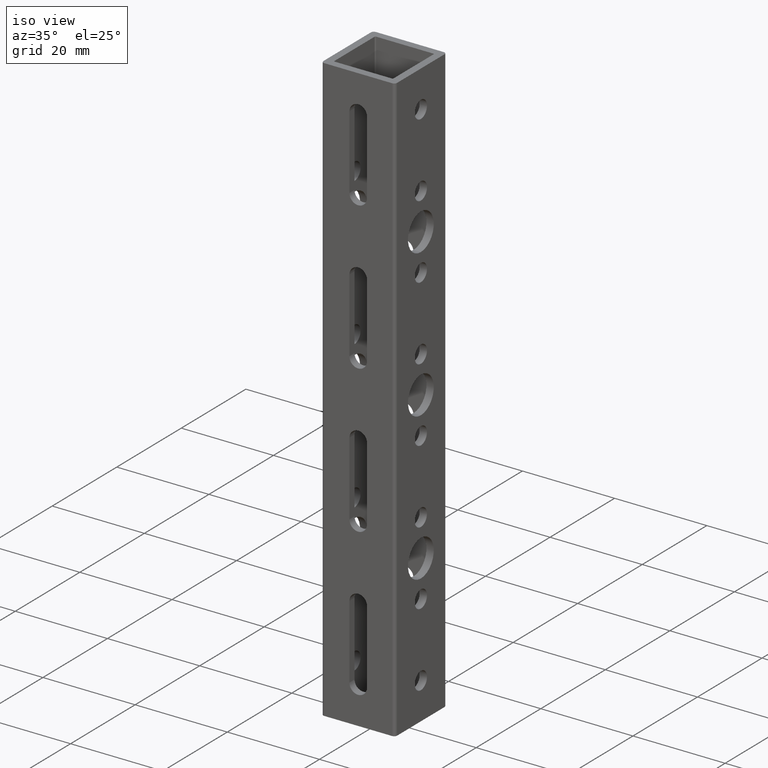
[diagram: clean part render]
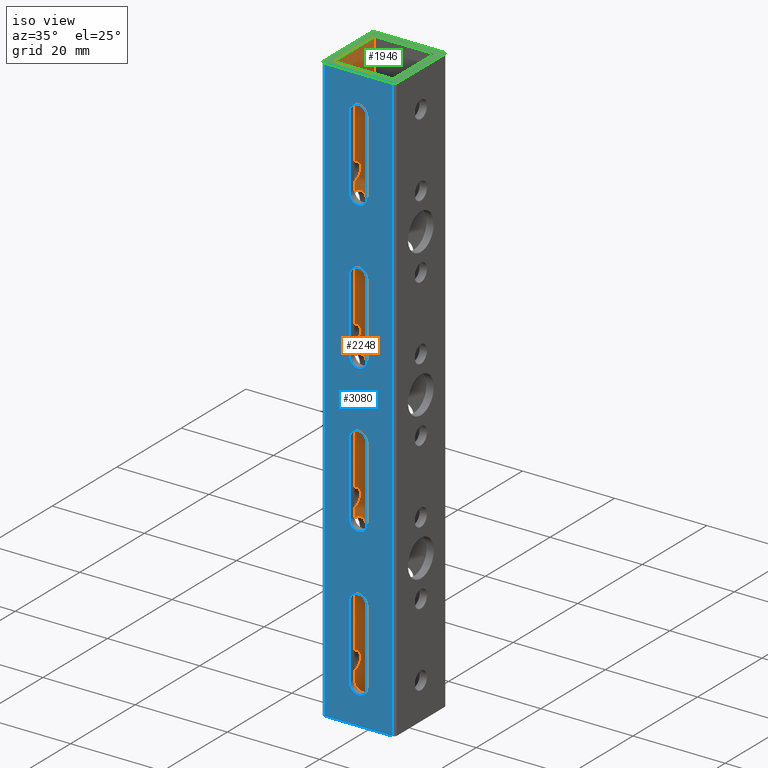
[diagram: same view with three faces highlighted in distinct colors, each labeled with its STEP entity id]
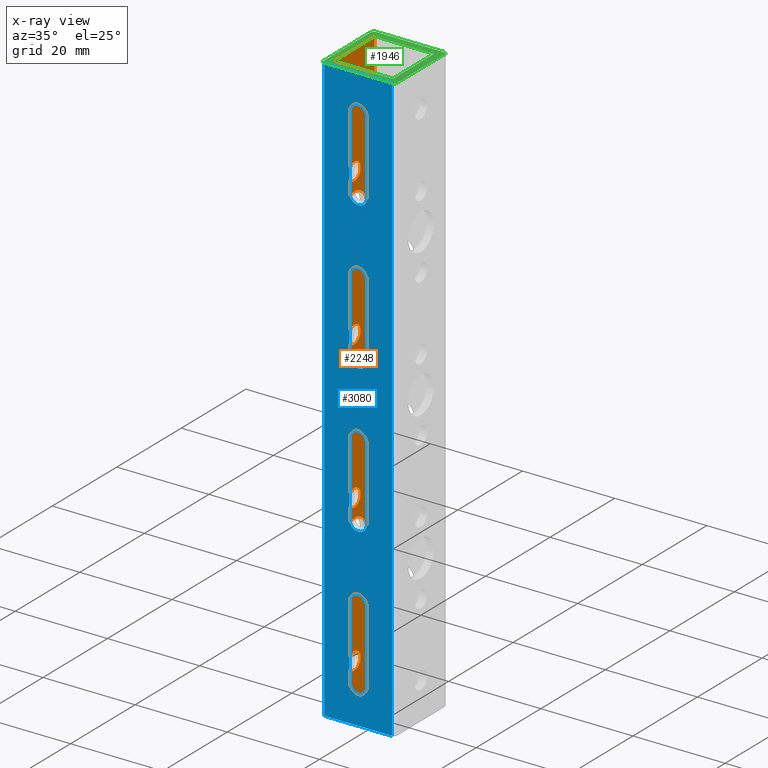
[diagram: x-ray of the same camera — body ghosted, the three highlighted faces saturated]
A machine part, iso view with three faces highlighted in distinct colors.
The next image is the same camera in x-ray (body ghosted, the three faces saturated) — at least one of them is partly hidden behind the body in this view.
Their STEP definitions:

[orange] entity #2248 — the highlighted planar face has unit normal (1, 0, 0).
#18 = ORIENTED_EDGE ( 'NONE', *, *, #3134, .F. ) ;
#21 = DIRECTION ( 'NONE',  ( 0.0000000000000000000, -1.000000000000000000, 0.0000000000000000000 ) ) ;
#47 = CARTESIAN_POINT ( 'NONE',  ( -0.2524606299212598900, -3.857155273869339500E-016, 3.464566930000001000 ) ) ;
#68 = CIRCLE ( 'NONE', #2793, 0.1574803149606295300 ) ;
#91 = CIRCLE ( 'NONE', #2719, 0.07500000000000015000 ) ;
#96 = DIRECTION ( 'NONE',  ( 1.000000000000000000, 0.0000000000000000000, 0.0000000000000000000 ) ) ;
#97 = FACE_OUTER_BOUND ( 'NONE', #2862, .T. ) ;
#101 = EDGE_CURVE ( 'NONE', #3566, #1895, #68, .T. ) ;
#113 = AXIS2_PLACEMENT_3D ( 'NONE', #430, #1008, #3530 ) ;
#133 = CARTESIAN_POINT ( 'NONE',  ( -0.2524606299212598900, 0.2424606299212598800, 5.039370078740157400 ) ) ;
#134 = EDGE_CURVE ( 'NONE', #1053, #1635, #2132, .T. ) ;
#171 = EDGE_LOOP ( 'NONE', ( #3077, #749 ) ) ;
#183 = FACE_BOUND ( 'NONE', #3520, .T. ) ;
#188 = AXIS2_PLACEMENT_3D ( 'NONE', #2228, #562, #2519 ) ;
#205 = ORIENTED_EDGE ( 'NONE', *, *, #3604, .T. ) ;
#229 = AXIS2_PLACEMENT_3D ( 'NONE', #1547, #705, #2950 ) ;
#238 = VERTEX_POINT ( 'NONE', #2469 ) ;
#255 = CARTESIAN_POINT ( 'NONE',  ( -0.2524606299212598900, -5.400017383417074700E-016, 4.724409450000000500 ) ) ;
#262 = AXIS2_PLACEMENT_3D ( 'NONE', #467, #2135, #3485 ) ;
#280 = FACE_BOUND ( 'NONE', #171, .T. ) ;
#293 = ORIENTED_EDGE ( 'NONE', *, *, #1167, .F. ) ;
#310 = CARTESIAN_POINT ( 'NONE',  ( -0.2524606299212598900, 0.2424606299212598800, 5.039370078740157400 ) ) ;
#337 = EDGE_LOOP ( 'NONE', ( #1577, #1613 ) ) ;
#346 = DIRECTION ( 'NONE',  ( 0.0000000000000000000, 0.0000000000000000000, -1.000000000000000000 ) ) ;
#361 = DIRECTION ( 'NONE',  ( 0.0000000000000000000, 0.0000000000000000000, -1.000000000000000000 ) ) ;
#397 = CARTESIAN_POINT ( 'NONE',  ( -0.2524606299212598900, -3.086109933851330200E-016, 3.779842519999999900 ) ) ;
#404 = EDGE_LOOP ( 'NONE', ( #1610, #840 ) ) ;
#418 = CIRCLE ( 'NONE', #1398, 0.1574803149606299200 ) ;
#421 = DIRECTION ( 'NONE',  ( 1.000000000000000000, 0.0000000000000000000, 0.0000000000000000000 ) ) ;
#430 = CARTESIAN_POINT ( 'NONE',  ( -0.2524606299212598900, -2.314293164321603300E-016, 2.204724410000000300 ) ) ;
#433 = AXIS2_PLACEMENT_3D ( 'NONE', #684, #1270, #2991 ) ;
#455 = CARTESIAN_POINT ( 'NONE',  ( -0.2524606299212598900, -3.086109933851330200E-016, 3.779842519999999900 ) ) ;
#464 = CIRCLE ( 'NONE', #2034, 0.07500000007529962500 ) ;
#467 = CARTESIAN_POINT ( 'NONE',  ( -0.2524606299212598900, 0.0000000000000000000, 1.259842520000000300 ) ) ;
#474 = DIRECTION ( 'NONE',  ( 1.000000000000000000, 0.0000000000000000000, 0.0000000000000000000 ) ) ;
#475 = VERTEX_POINT ( 'NONE', #3654 ) ;
#518 = CARTESIAN_POINT ( 'NONE',  ( -0.2524606299212598900, 0.0000000000000000000, 1.259842520000000300 ) ) ;
#530 = VERTEX_POINT ( 'NONE', #3398 ) ;
#553 = DIRECTION ( 'NONE',  ( 0.0000000000000000000, 0.0000000000000000000, -1.000000000000000000 ) ) ;
#562 = DIRECTION ( 'NONE',  ( 1.000000000000000000, 0.0000000000000000000, 0.0000000000000000000 ) ) ;
#566 = CARTESIAN_POINT ( 'NONE',  ( -0.2524606299212598900, -0.2424606299212598600, 5.039370078740157400 ) ) ;
#589 = CARTESIAN_POINT ( 'NONE',  ( -0.2524606299212598900, -0.2524606299212598400, 5.039370078740157400 ) ) ;
#634 = CARTESIAN_POINT ( 'NONE',  ( -0.2524606299212598900, -1.543054966925665100E-016, 2.519842520000000100 ) ) ;
#644 = EDGE_CURVE ( 'NONE', #737, #3209, #3407, .T. ) ;
#666 = CARTESIAN_POINT ( 'NONE',  ( -0.2524606299212598900, -0.2524606299212598400, 0.0000000000000000000 ) ) ;
#676 = VECTOR ( 'NONE', #2627, 39.37007874015748100 ) ;
#684 = CARTESIAN_POINT ( 'NONE',  ( -0.2524606299212598900, -1.543054966925665100E-016, 2.519842520000000100 ) ) ;
#705 = DIRECTION ( 'NONE',  ( 1.000000000000000000, 0.0000000000000000000, 0.0000000000000000000 ) ) ;
#720 = AXIS2_PLACEMENT_3D ( 'NONE', #1523, #3491, #1811 ) ;
#722 = DIRECTION ( 'NONE',  ( 1.000000000000000000, 0.0000000000000000000, 0.0000000000000000000 ) ) ;
#723 = CIRCLE ( 'NONE', #433, 0.1574803149606297800 ) ;
#737 = VERTEX_POINT ( 'NONE', #1858 ) ;
#749 = ORIENTED_EDGE ( 'NONE', *, *, #2256, .F. ) ;
#754 = LINE ( 'NONE', #666, #676 ) ;
#763 = LINE ( 'NONE', #310, #2082 ) ;
#777 = DIRECTION ( 'NONE',  ( 0.0000000000000000000, 0.0000000000000000000, -1.000000000000000000 ) ) ;
#789 = DIRECTION ( 'NONE',  ( 0.0000000000000000000, 0.0000000000000000000, -1.000000000000000000 ) ) ;
#806 = CARTESIAN_POINT ( 'NONE',  ( -0.2524606299212598900, -1.542862109547735700E-016, 1.499803150000000400 ) ) ;
#809 = CIRCLE ( 'NONE', #2756, 0.1574803149606297800 ) ;
#840 = ORIENTED_EDGE ( 'NONE', *, *, #2213, .F. ) ;
#843 = EDGE_LOOP ( 'NONE', ( #1493, #2229 ) ) ;
#854 = FACE_BOUND ( 'NONE', #3181, .T. ) ;
#865 = CIRCLE ( 'NONE', #3440, 0.07499999999999988600 ) ;
#914 = CIRCLE ( 'NONE', #3157, 0.07500000000000015000 ) ;
#929 = CARTESIAN_POINT ( 'NONE',  ( -0.2524606299212598900, -3.857155273869339500E-016, 3.464566930000001000 ) ) ;
#944 = FACE_BOUND ( 'NONE', #2541, .T. ) ;
#957 = VERTEX_POINT ( 'NONE', #2358 ) ;
#982 = DIRECTION ( 'NONE',  ( 0.0000000000000000000, 0.0000000000000000000, -1.000000000000000000 ) ) ;
#997 = DIRECTION ( 'NONE',  ( 0.0000000000000000000, 0.0000000000000000000, -1.000000000000000000 ) ) ;
#1008 = DIRECTION ( 'NONE',  ( 1.000000000000000000, 0.0000000000000000000, 0.0000000000000000000 ) ) ;
#1037 = FACE_BOUND ( 'NONE', #337, .T. ) ;
#1053 = VERTEX_POINT ( 'NONE', #2616 ) ;
#1067 = ORIENTED_EDGE ( 'NONE', *, *, #3215, .F. ) ;
#1095 = EDGE_CURVE ( 'NONE', #1409, #475, #2163, .T. ) ;
#1114 = EDGE_LOOP ( 'NONE', ( #3433, #293 ) ) ;
#1148 = ORIENTED_EDGE ( 'NONE', *, *, #1529, .F. ) ;
#1167 = EDGE_CURVE ( 'NONE', #475, #1409, #3402, .T. ) ;
#1186 = CARTESIAN_POINT ( 'NONE',  ( -0.2524606299212598900, -7.714310547738678500E-017, 0.9448818900000001100 ) ) ;
#1203 = DIRECTION ( 'NONE',  ( 0.0000000000000000000, 0.0000000000000000000, -1.000000000000000000 ) ) ;
#1224 = ORIENTED_EDGE ( 'NONE', *, *, #3106, .F. ) ;
#1228 = VERTEX_POINT ( 'NONE', #3515 ) ;
#1243 = CARTESIAN_POINT ( 'NONE',  ( -0.2524606299212598900, -0.2424606299212598600, 0.0000000000000000000 ) ) ;
#1244 = LINE ( 'NONE', #1243, #2735 ) ;
#1245 = EDGE_CURVE ( 'NONE', #2094, #1228, #809, .T. ) ;
#1253 = CARTESIAN_POINT ( 'NONE',  ( -0.2524606299212598900, -2.993875709159420200E-016, 2.909645670000000200 ) ) ;
#1269 = EDGE_CURVE ( 'NONE', #530, #3518, #1648, .T. ) ;
#1270 = DIRECTION ( 'NONE',  ( 1.000000000000000000, 0.0000000000000000000, 0.0000000000000000000 ) ) ;
#1272 = CARTESIAN_POINT ( 'NONE',  ( -0.2524606299212598900, 0.0000000000000000000, 0.3149606300000000700 ) ) ;
#1273 = EDGE_CURVE ( 'NONE', #1895, #3566, #3059, .T. ) ;
#1285 = AXIS2_PLACEMENT_3D ( 'NONE', #2143, #474, #2430 ) ;
#1315 = DIRECTION ( 'NONE',  ( 1.000000000000000000, 0.0000000000000000000, 0.0000000000000000000 ) ) ;
#1318 = VERTEX_POINT ( 'NONE', #1814 ) ;
#1327 = VECTOR ( 'NONE', #21, 39.37007874015748100 ) ;
#1348 = EDGE_CURVE ( 'NONE', #2142, #2012, #2870, .T. ) ;
#1355 = EDGE_CURVE ( 'NONE', #1228, #2094, #723, .T. ) ;
#1398 = AXIS2_PLACEMENT_3D ( 'NONE', #518, #2474, #789 ) ;
#1409 = VERTEX_POINT ( 'NONE', #2492 ) ;
#1411 = DIRECTION ( 'NONE',  ( 1.000000000000000000, 0.0000000000000000000, 0.0000000000000000000 ) ) ;
#1417 = VERTEX_POINT ( 'NONE', #2804 ) ;
#1460 = VERTEX_POINT ( 'NONE', #1950 ) ;
#1493 = ORIENTED_EDGE ( 'NONE', *, *, #1355, .F. ) ;
#1508 = CIRCLE ( 'NONE', #3282, 0.07500000000000002500 ) ;
#1509 = CIRCLE ( 'NONE', #1285, 0.07499999999999960900 ) ;
#1523 = CARTESIAN_POINT ( 'NONE',  ( -0.2524606299212598900, -5.400017383417074700E-016, 4.724409450000000500 ) ) ;
#1529 = EDGE_CURVE ( 'NONE', #1635, #1053, #865, .T. ) ;
#1530 = CARTESIAN_POINT ( 'NONE',  ( -0.2524606299212598900, -3.085724219095471400E-016, 2.834645670000000500 ) ) ;
#1547 = CARTESIAN_POINT ( 'NONE',  ( -0.2524606299212598900, -4.628586328643206600E-016, 4.094488190000000700 ) ) ;
#1576 = VERTEX_POINT ( 'NONE', #1622 ) ;
#1577 = ORIENTED_EDGE ( 'NONE', *, *, #1907, .F. ) ;
#1581 = ORIENTED_EDGE ( 'NONE', *, *, #3178, .T. ) ;
#1597 = FACE_BOUND ( 'NONE', #843, .T. ) ;
#1610 = ORIENTED_EDGE ( 'NONE', *, *, #2806, .F. ) ;
#1613 = ORIENTED_EDGE ( 'NONE', *, *, #1918, .F. ) ;
#1622 = CARTESIAN_POINT ( 'NONE',  ( -0.2524606299212598900, -3.857155273869339500E-016, 3.389566930000000900 ) ) ;
#1629 = AXIS2_PLACEMENT_3D ( 'NONE', #2976, #2744, #777 ) ;
#1635 = VERTEX_POINT ( 'NONE', #806 ) ;
#1646 = CIRCLE ( 'NONE', #2898, 0.07499999999999960900 ) ;
#1648 = CIRCLE ( 'NONE', #2181, 0.07500000000000002500 ) ;
#1660 = AXIS2_PLACEMENT_3D ( 'NONE', #2399, #722, #2115 ) ;
#1683 = CARTESIAN_POINT ( 'NONE',  ( -0.2524606299212598900, -6.795825448378161900E-017, 1.019881890000000200 ) ) ;
#1689 = DIRECTION ( 'NONE',  ( 1.000000000000000000, 0.0000000000000000000, 0.0000000000000000000 ) ) ;
#1691 = FACE_BOUND ( 'NONE', #2799, .T. ) ;
#1722 = DIRECTION ( 'NONE',  ( 1.000000000000000000, 0.0000000000000000000, 0.0000000000000000000 ) ) ;
#1811 = DIRECTION ( 'NONE',  ( 0.0000000000000000000, 0.0000000000000000000, -1.000000000000000000 ) ) ;
#1814 = CARTESIAN_POINT ( 'NONE',  ( -0.2524606299212598900, 0.2424606299212598800, 0.0000000000000000000 ) ) ;
#1858 = CARTESIAN_POINT ( 'NONE',  ( -0.2524606299212598900, -3.085724219095471400E-016, 2.759645670000001200 ) ) ;
#1877 = ORIENTED_EDGE ( 'NONE', *, *, #134, .F. ) ;
#1884 = CARTESIAN_POINT ( 'NONE',  ( -0.2524606299212598900, -1.350197203280413000E-016, 2.677322834960629700 ) ) ;
#1895 = VERTEX_POINT ( 'NONE', #2980 ) ;
#1907 = EDGE_CURVE ( 'NONE', #1417, #3088, #2700, .T. ) ;
#1918 = EDGE_CURVE ( 'NONE', #3088, #1417, #464, .T. ) ;
#1950 = CARTESIAN_POINT ( 'NONE',  ( -0.2524606299212598900, 0.0000000000000000000, 1.102362205039370200 ) ) ;
#1977 = CARTESIAN_POINT ( 'NONE',  ( -0.2524606299212598900, -3.086109933851330200E-016, 3.622362205039370700 ) ) ;
#1992 = EDGE_CURVE ( 'NONE', #1460, #2885, #3110, .T. ) ;
#1995 = DIRECTION ( 'NONE',  ( -0.0000000000000000000, 0.0000000000000000000, 1.000000000000000000 ) ) ;
#2012 = VERTEX_POINT ( 'NONE', #3247 ) ;
#2022 = DIRECTION ( 'NONE',  ( 1.000000000000000000, 0.0000000000000000000, 0.0000000000000000000 ) ) ;
#2028 = CARTESIAN_POINT ( 'NONE',  ( -0.2524606299212598900, 9.184851002826689300E-018, 0.3899606300752996900 ) ) ;
#2034 = AXIS2_PLACEMENT_3D ( 'NONE', #1272, #2672, #997 ) ;
#2038 = DIRECTION ( 'NONE',  ( 1.000000000000000000, 0.0000000000000000000, 0.0000000000000000000 ) ) ;
#2073 = LINE ( 'NONE', #589, #1327 ) ;
#2082 = VECTOR ( 'NONE', #1995, 39.37007874015748100 ) ;
#2094 = VERTEX_POINT ( 'NONE', #1884 ) ;
#2096 = CARTESIAN_POINT ( 'NONE',  ( -0.2524606299212598900, -4.628586328643206600E-016, 4.094488190000000700 ) ) ;
#2104 = VERTEX_POINT ( 'NONE', #2742 ) ;
#2115 = DIRECTION ( 'NONE',  ( 0.0000000000000000000, 0.0000000000000000000, -1.000000000000000000 ) ) ;
#2132 = CIRCLE ( 'NONE', #3187, 0.07499999999999988600 ) ;
#2135 = DIRECTION ( 'NONE',  ( 1.000000000000000000, 0.0000000000000000000, 0.0000000000000000000 ) ) ;
#2137 = EDGE_CURVE ( 'NONE', #2885, #1460, #418, .T. ) ;
#2142 = VERTEX_POINT ( 'NONE', #2179 ) ;
#2143 = CARTESIAN_POINT ( 'NONE',  ( -0.2524606299212598900, -3.085724219095471400E-016, 2.834645670000000500 ) ) ;
#2163 = CIRCLE ( 'NONE', #113, 0.07499999999999988600 ) ;
#2179 = CARTESIAN_POINT ( 'NONE',  ( -0.2524606299212598900, -4.536737818707155400E-016, 4.169488190000000900 ) ) ;
#2181 = AXIS2_PLACEMENT_3D ( 'NONE', #1186, #96, #3467 ) ;
#2184 = DIRECTION ( 'NONE',  ( 0.0000000000000000000, 0.0000000000000000000, -1.000000000000000000 ) ) ;
#2188 = EDGE_LOOP ( 'NONE', ( #3211, #2418 ) ) ;
#2213 = EDGE_CURVE ( 'NONE', #2104, #2328, #1646, .T. ) ;
#2216 = DIRECTION ( 'NONE',  ( 1.000000000000000000, 0.0000000000000000000, 0.0000000000000000000 ) ) ;
#2228 = CARTESIAN_POINT ( 'NONE',  ( -0.2524606299212598900, -0.2524606299212598400, 17.63779527559055200 ) ) ;
#2229 = ORIENTED_EDGE ( 'NONE', *, *, #1245, .F. ) ;
#2248 = ADVANCED_FACE ( 'NONE', ( #1037, #280, #3194, #2431, #1691, #944, #183, #3107, #2343, #1597, #854, #97 ), #3358, .T. ) ;
#2256 = EDGE_CURVE ( 'NONE', #3518, #530, #1508, .T. ) ;
#2292 = EDGE_CURVE ( 'NONE', #1318, #3257, #763, .T. ) ;
#2328 = VERTEX_POINT ( 'NONE', #2553 ) ;
#2343 = FACE_BOUND ( 'NONE', #2188, .T. ) ;
#2358 = CARTESIAN_POINT ( 'NONE',  ( -0.2524606299212598900, -3.765306763933287800E-016, 3.539566930000001200 ) ) ;
#2376 = DIRECTION ( 'NONE',  ( 0.0000000000000000000, 0.0000000000000000000, -1.000000000000000000 ) ) ;
#2399 = CARTESIAN_POINT ( 'NONE',  ( -0.2524606299212598900, 0.0000000000000000000, 0.3149606300000000700 ) ) ;
#2416 = DIRECTION ( 'NONE',  ( 1.000000000000000000, 0.0000000000000000000, 0.0000000000000000000 ) ) ;
#2418 = ORIENTED_EDGE ( 'NONE', *, *, #2137, .F. ) ;
#2430 = DIRECTION ( 'NONE',  ( 0.0000000000000000000, 0.0000000000000000000, -1.000000000000000000 ) ) ;
#2431 = FACE_BOUND ( 'NONE', #1114, .T. ) ;
#2468 = AXIS2_PLACEMENT_3D ( 'NONE', #1530, #1722, #3448 ) ;
#2469 = CARTESIAN_POINT ( 'NONE',  ( -0.2524606299212598900, -0.2424606299212598600, 0.0000000000000000000 ) ) ;
#2474 = DIRECTION ( 'NONE',  ( 1.000000000000000000, 0.0000000000000000000, 0.0000000000000000000 ) ) ;
#2492 = CARTESIAN_POINT ( 'NONE',  ( -0.2524606299212598900, -2.314293164321603300E-016, 2.129724410000000100 ) ) ;
#2519 = DIRECTION ( 'NONE',  ( 0.0000000000000000000, 0.0000000000000000000, -1.000000000000000000 ) ) ;
#2538 = ORIENTED_EDGE ( 'NONE', *, *, #1348, .F. ) ;
#2541 = EDGE_LOOP ( 'NONE', ( #3283, #1224 ) ) ;
#2553 = CARTESIAN_POINT ( 'NONE',  ( -0.2524606299212598900, -5.400017383417074700E-016, 4.649409450000001200 ) ) ;
#2564 = ORIENTED_EDGE ( 'NONE', *, *, #2292, .T. ) ;
#2616 = CARTESIAN_POINT ( 'NONE',  ( -0.2524606299212598900, -1.451013599611683800E-016, 1.649803150000000300 ) ) ;
#2627 = DIRECTION ( 'NONE',  ( -0.0000000000000000000, -1.000000000000000000, -0.0000000000000000000 ) ) ;
#2672 = DIRECTION ( 'NONE',  ( 1.000000000000000000, 0.0000000000000000000, 0.0000000000000000000 ) ) ;
#2674 = ORIENTED_EDGE ( 'NONE', *, *, #1273, .F. ) ;
#2700 = CIRCLE ( 'NONE', #1660, 0.07500000007529962500 ) ;
#2701 = DIRECTION ( 'NONE',  ( 0.0000000000000000000, 0.0000000000000000000, -1.000000000000000000 ) ) ;
#2714 = EDGE_LOOP ( 'NONE', ( #1148, #1877 ) ) ;
#2719 = AXIS2_PLACEMENT_3D ( 'NONE', #929, #2880, #1203 ) ;
#2725 = ORIENTED_EDGE ( 'NONE', *, *, #2925, .F. ) ;
#2735 = VECTOR ( 'NONE', #3214, 39.37007874015748100 ) ;
#2742 = CARTESIAN_POINT ( 'NONE',  ( -0.2524606299212598900, -5.308168873481023500E-016, 4.799409450000000600 ) ) ;
#2744 = DIRECTION ( 'NONE',  ( 1.000000000000000000, 0.0000000000000000000, 0.0000000000000000000 ) ) ;
#2756 = AXIS2_PLACEMENT_3D ( 'NONE', #634, #2038, #361 ) ;
#2787 = CIRCLE ( 'NONE', #720, 0.07499999999999960900 ) ;
#2793 = AXIS2_PLACEMENT_3D ( 'NONE', #455, #2416, #2701 ) ;
#2799 = EDGE_LOOP ( 'NONE', ( #3158, #2725 ) ) ;
#2804 = CARTESIAN_POINT ( 'NONE',  ( -0.2524606299212598900, 0.0000000000000000000, 0.2399606299247004400 ) ) ;
#2806 = EDGE_CURVE ( 'NONE', #2328, #2104, #2787, .T. ) ;
#2862 = EDGE_LOOP ( 'NONE', ( #18, #2564, #205, #1581 ) ) ;
#2870 = CIRCLE ( 'NONE', #229, 0.07500000000000015000 ) ;
#2880 = DIRECTION ( 'NONE',  ( 1.000000000000000000, 0.0000000000000000000, 0.0000000000000000000 ) ) ;
#2885 = VERTEX_POINT ( 'NONE', #3542 ) ;
#2898 = AXIS2_PLACEMENT_3D ( 'NONE', #255, #2216, #553 ) ;
#2925 = EDGE_CURVE ( 'NONE', #3209, #737, #1509, .T. ) ;
#2936 = DIRECTION ( 'NONE',  ( 1.000000000000000000, 0.0000000000000000000, 0.0000000000000000000 ) ) ;
#2950 = DIRECTION ( 'NONE',  ( 0.0000000000000000000, 0.0000000000000000000, -1.000000000000000000 ) ) ;
#2976 = CARTESIAN_POINT ( 'NONE',  ( -0.2524606299212598900, -2.314293164321603300E-016, 2.204724410000000300 ) ) ;
#2980 = CARTESIAN_POINT ( 'NONE',  ( -0.2524606299212598900, -2.893252170206078300E-016, 3.937322834960629500 ) ) ;
#2991 = DIRECTION ( 'NONE',  ( 0.0000000000000000000, 0.0000000000000000000, -1.000000000000000000 ) ) ;
#3001 = CARTESIAN_POINT ( 'NONE',  ( -0.2524606299212598900, -1.542862109547735700E-016, 1.574803150000000400 ) ) ;
#3053 = CARTESIAN_POINT ( 'NONE',  ( -0.2524606299212598900, -1.542862109547735700E-016, 1.574803150000000400 ) ) ;
#3059 = CIRCLE ( 'NONE', #3144, 0.1574803149606295300 ) ;
#3077 = ORIENTED_EDGE ( 'NONE', *, *, #1269, .F. ) ;
#3088 = VERTEX_POINT ( 'NONE', #2028 ) ;
#3106 = EDGE_CURVE ( 'NONE', #957, #1576, #91, .T. ) ;
#3107 = FACE_BOUND ( 'NONE', #404, .T. ) ;
#3110 = CIRCLE ( 'NONE', #262, 0.1574803149606299200 ) ;
#3134 = EDGE_CURVE ( 'NONE', #1318, #238, #754, .T. ) ;
#3144 = AXIS2_PLACEMENT_3D ( 'NONE', #397, #2936, #982 ) ;
#3157 = AXIS2_PLACEMENT_3D ( 'NONE', #47, #2022, #346 ) ;
#3158 = ORIENTED_EDGE ( 'NONE', *, *, #644, .F. ) ;
#3178 = EDGE_CURVE ( 'NONE', #3522, #238, #1244, .T. ) ;
#3181 = EDGE_LOOP ( 'NONE', ( #3591, #2674 ) ) ;
#3187 = AXIS2_PLACEMENT_3D ( 'NONE', #3001, #1315, #3281 ) ;
#3194 = FACE_BOUND ( 'NONE', #2714, .T. ) ;
#3209 = VERTEX_POINT ( 'NONE', #1253 ) ;
#3211 = ORIENTED_EDGE ( 'NONE', *, *, #1992, .F. ) ;
#3214 = DIRECTION ( 'NONE',  ( 0.0000000000000000000, -0.0000000000000000000, -1.000000000000000000 ) ) ;
#3215 = EDGE_CURVE ( 'NONE', #2012, #2142, #3310, .T. ) ;
#3247 = CARTESIAN_POINT ( 'NONE',  ( -0.2524606299212598900, -4.628586328643206600E-016, 4.019488190000000600 ) ) ;
#3257 = VERTEX_POINT ( 'NONE', #133 ) ;
#3281 = DIRECTION ( 'NONE',  ( 0.0000000000000000000, 0.0000000000000000000, -1.000000000000000000 ) ) ;
#3282 = AXIS2_PLACEMENT_3D ( 'NONE', #3367, #1689, #3641 ) ;
#3283 = ORIENTED_EDGE ( 'NONE', *, *, #3645, .F. ) ;
#3310 = CIRCLE ( 'NONE', #3469, 0.07500000000000015000 ) ;
#3358 = PLANE ( 'NONE',  #188 ) ;
#3367 = CARTESIAN_POINT ( 'NONE',  ( -0.2524606299212598900, -7.714310547738678500E-017, 0.9448818900000001100 ) ) ;
#3398 = CARTESIAN_POINT ( 'NONE',  ( -0.2524606299212598900, -7.714310547738678500E-017, 0.8698818900000001600 ) ) ;
#3402 = CIRCLE ( 'NONE', #1629, 0.07499999999999988600 ) ;
#3407 = CIRCLE ( 'NONE', #2468, 0.07499999999999960900 ) ;
#3433 = ORIENTED_EDGE ( 'NONE', *, *, #1095, .F. ) ;
#3440 = AXIS2_PLACEMENT_3D ( 'NONE', #3053, #1411, #2184 ) ;
#3448 = DIRECTION ( 'NONE',  ( 0.0000000000000000000, 0.0000000000000000000, -1.000000000000000000 ) ) ;
#3467 = DIRECTION ( 'NONE',  ( 0.0000000000000000000, 0.0000000000000000000, -1.000000000000000000 ) ) ;
#3469 = AXIS2_PLACEMENT_3D ( 'NONE', #2096, #421, #2376 ) ;
#3485 = DIRECTION ( 'NONE',  ( 0.0000000000000000000, 0.0000000000000000000, -1.000000000000000000 ) ) ;
#3491 = DIRECTION ( 'NONE',  ( 1.000000000000000000, 0.0000000000000000000, 0.0000000000000000000 ) ) ;
#3515 = CARTESIAN_POINT ( 'NONE',  ( -0.2524606299212598900, -1.543054966925665100E-016, 2.362362205039370000 ) ) ;
#3518 = VERTEX_POINT ( 'NONE', #1683 ) ;
#3520 = EDGE_LOOP ( 'NONE', ( #1067, #2538 ) ) ;
#3522 = VERTEX_POINT ( 'NONE', #566 ) ;
#3530 = DIRECTION ( 'NONE',  ( 0.0000000000000000000, 0.0000000000000000000, -1.000000000000000000 ) ) ;
#3542 = CARTESIAN_POINT ( 'NONE',  ( -0.2524606299212598900, 1.928577636452525500E-017, 1.417322834960629900 ) ) ;
#3566 = VERTEX_POINT ( 'NONE', #1977 ) ;
#3591 = ORIENTED_EDGE ( 'NONE', *, *, #101, .F. ) ;
#3604 = EDGE_CURVE ( 'NONE', #3257, #3522, #2073, .T. ) ;
#3641 = DIRECTION ( 'NONE',  ( 0.0000000000000000000, 0.0000000000000000000, -1.000000000000000000 ) ) ;
#3645 = EDGE_CURVE ( 'NONE', #1576, #957, #914, .T. ) ;
#3654 = CARTESIAN_POINT ( 'NONE',  ( -0.2524606299212598900, -2.222444654385552100E-016, 2.279724410000000000 ) ) ;

[blue] entity #3080 — the highlighted planar face has unit normal (-0, 1, 0).
#22 = EDGE_CURVE ( 'NONE', #3026, #1415, #1007, .T. ) ;
#23 = ORIENTED_EDGE ( 'NONE', *, *, #3172, .T. ) ;
#43 = VERTEX_POINT ( 'NONE', #103 ) ;
#88 = VERTEX_POINT ( 'NONE', #728 ) ;
#103 = CARTESIAN_POINT ( 'NONE',  ( 7.714310548702964800E-017, -0.3149606299212598400, 1.019881890000000200 ) ) ;
#107 = CARTESIAN_POINT ( 'NONE',  ( -0.07499999999999999700, -0.3149606299212599500, 0.9448818900000022200 ) ) ;
#127 = EDGE_CURVE ( 'NONE', #3333, #1682, #736, .T. ) ;
#145 = VECTOR ( 'NONE', #1246, 39.37007874015748100 ) ;
#160 = DIRECTION ( 'NONE',  ( 1.219727443741261000E-016, 0.0000000000000000000, 1.000000000000000000 ) ) ;
#161 = ORIENTED_EDGE ( 'NONE', *, *, #2520, .T. ) ;
#175 = CARTESIAN_POINT ( 'NONE',  ( 7.714310548702964800E-017, -0.3149606299212598400, 2.834645670000000500 ) ) ;
#176 = FACE_OUTER_BOUND ( 'NONE', #3623, .T. ) ;
#185 = CIRCLE ( 'NONE', #3175, 0.07499999999999988600 ) ;
#194 = CARTESIAN_POINT ( 'NONE',  ( -0.07499999999999942800, -0.3149606299212599500, 3.464566930000001500 ) ) ;
#246 = CARTESIAN_POINT ( 'NONE',  ( 0.07500000000000015000, -0.3149606299212598400, 4.724409450000000500 ) ) ;
#250 = CARTESIAN_POINT ( 'NONE',  ( 7.714310548702964800E-017, -0.3149606299212598400, 2.279724410000000000 ) ) ;
#274 = DIRECTION ( 'NONE',  ( 0.0000000000000000000, 1.000000000000000000, 0.0000000000000000000 ) ) ;
#279 = VECTOR ( 'NONE', #894, 39.37007874015748100 ) ;
#306 = CARTESIAN_POINT ( 'NONE',  ( -0.07499999999999906700, -0.3149606299212599500, 4.724409450000002200 ) ) ;
#354 = VERTEX_POINT ( 'NONE', #425 ) ;
#376 = LINE ( 'NONE', #2851, #279 ) ;
#403 = DIRECTION ( 'NONE',  ( 1.000000000000000000, 1.084202172485504300E-016, -0.0000000000000000000 ) ) ;
#413 = ORIENTED_EDGE ( 'NONE', *, *, #453, .T. ) ;
#425 = CARTESIAN_POINT ( 'NONE',  ( 7.714310548702964800E-017, -0.3149606299212598400, 3.539566929999999900 ) ) ;
#451 = VERTEX_POINT ( 'NONE', #1354 ) ;
#453 = EDGE_CURVE ( 'NONE', #1488, #747, #3162, .T. ) ;
#472 = DIRECTION ( 'NONE',  ( 0.0000000000000000000, 1.000000000000000000, 0.0000000000000000000 ) ) ;
#481 = VERTEX_POINT ( 'NONE', #306 ) ;
#504 = AXIS2_PLACEMENT_3D ( 'NONE', #3506, #2114, #1589 ) ;
#515 = VECTOR ( 'NONE', #1990, 39.37007874015748100 ) ;
#519 = AXIS2_PLACEMENT_3D ( 'NONE', #1642, #3600, #1926 ) ;
#534 = ORIENTED_EDGE ( 'NONE', *, *, #2454, .T. ) ;
#580 = VERTEX_POINT ( 'NONE', #2291 ) ;
#593 = CIRCLE ( 'NONE', #504, 0.07499999999999988600 ) ;
#595 = LINE ( 'NONE', #2820, #515 ) ;
#622 = ORIENTED_EDGE ( 'NONE', *, *, #2023, .T. ) ;
#675 = EDGE_CURVE ( 'NONE', #88, #3026, #1169, .T. ) ;
#728 = CARTESIAN_POINT ( 'NONE',  ( -0.2899606299212599800, -0.3149606299212599500, 0.0000000000000000000 ) ) ;
#736 = CIRCLE ( 'NONE', #2984, 0.07499999999999960900 ) ;
#747 = VERTEX_POINT ( 'NONE', #2320 ) ;
#774 = EDGE_CURVE ( 'NONE', #580, #3333, #1653, .T. ) ;
#822 = ORIENTED_EDGE ( 'NONE', *, *, #1620, .T. ) ;
#829 = ORIENTED_EDGE ( 'NONE', *, *, #2785, .T. ) ;
#864 = DIRECTION ( 'NONE',  ( 0.0000000000000000000, 1.000000000000000000, 0.0000000000000000000 ) ) ;
#894 = DIRECTION ( 'NONE',  ( -1.000000000000000000, -0.0000000000000000000, -0.0000000000000000000 ) ) ;
#912 = AXIS2_PLACEMENT_3D ( 'NONE', #954, #2915, #1234 ) ;
#932 = DIRECTION ( 'NONE',  ( -2.168404344428907400E-016, -0.0000000000000000000, -1.000000000000000000 ) ) ;
#946 = VECTOR ( 'NONE', #2147, 39.37007874015748100 ) ;
#954 = CARTESIAN_POINT ( 'NONE',  ( 7.714310548702964800E-017, -0.3149606299212598400, 0.9448818900000001100 ) ) ;
#963 = VERTEX_POINT ( 'NONE', #107 ) ;
#986 = DIRECTION ( 'NONE',  ( -0.0000000000000000000, -0.0000000000000000000, 1.000000000000000000 ) ) ;
#1007 = LINE ( 'NONE', #1476, #2496 ) ;
#1026 = AXIS2_PLACEMENT_3D ( 'NONE', #3272, #1586, #3555 ) ;
#1027 = FACE_BOUND ( 'NONE', #2423, .T. ) ;
#1050 = EDGE_LOOP ( 'NONE', ( #2765, #3424, #3589, #829, #622 ) ) ;
#1060 = CARTESIAN_POINT ( 'NONE',  ( 7.714310548702964800E-017, -0.3149606299212598400, 4.724409450000000500 ) ) ;
#1061 = DIRECTION ( 'NONE',  ( 0.0000000000000000000, 1.000000000000000000, 0.0000000000000000000 ) ) ;
#1084 = VECTOR ( 'NONE', #160, 39.37007874015748100 ) ;
#1100 = ORIENTED_EDGE ( 'NONE', *, *, #2364, .T. ) ;
#1108 = EDGE_LOOP ( 'NONE', ( #23, #161, #2110, #3051, #1100 ) ) ;
#1147 = EDGE_CURVE ( 'NONE', #2688, #3505, #593, .T. ) ;
#1158 = VECTOR ( 'NONE', #1804, 39.37007874015748100 ) ;
#1169 = LINE ( 'NONE', #2078, #2566 ) ;
#1190 = CARTESIAN_POINT ( 'NONE',  ( -0.07499999999999999700, -0.3149606299212598400, 0.3149606300000000700 ) ) ;
#1209 = CIRCLE ( 'NONE', #2210, 0.07500000000000002500 ) ;
#1230 = DIRECTION ( 'NONE',  ( 1.219727443741261000E-016, 0.0000000000000000000, 1.000000000000000000 ) ) ;
#1234 = DIRECTION ( 'NONE',  ( 0.0000000000000000000, 0.0000000000000000000, 1.000000000000000000 ) ) ;
#1242 = VERTEX_POINT ( 'NONE', #2340 ) ;
#1246 = DIRECTION ( 'NONE',  ( -1.219727443741261000E-016, -0.0000000000000000000, -1.000000000000000000 ) ) ;
#1289 = CARTESIAN_POINT ( 'NONE',  ( 0.07500000000000006700, -0.3149606299212598400, 4.094488190000000700 ) ) ;
#1332 = LINE ( 'NONE', #3201, #2910 ) ;
#1337 = DIRECTION ( 'NONE',  ( 0.0000000000000000000, 0.0000000000000000000, 1.000000000000000000 ) ) ;
#1354 = CARTESIAN_POINT ( 'NONE',  ( -0.07499999999999965000, -0.3149606299212599500, 2.204724410000000700 ) ) ;
#1395 = CARTESIAN_POINT ( 'NONE',  ( -0.07499999999999976100, -0.3149606299212598400, 1.574803150000000400 ) ) ;
#1415 = VERTEX_POINT ( 'NONE', #1632 ) ;
#1461 = DIRECTION ( 'NONE',  ( -1.000000000000000000, -1.084202172485504300E-016, 0.0000000000000000000 ) ) ;
#1466 = CIRCLE ( 'NONE', #3217, 0.07499999999999960900 ) ;
#1472 = VECTOR ( 'NONE', #932, 39.37007874015748100 ) ;
#1476 = CARTESIAN_POINT ( 'NONE',  ( 0.2899606299212597000, -0.3149606299212598400, 17.63779527559055200 ) ) ;
#1481 = CARTESIAN_POINT ( 'NONE',  ( 0.07500000000000006700, -0.3149606299212598400, 1.574803150000000400 ) ) ;
#1486 = ORIENTED_EDGE ( 'NONE', *, *, #774, .T. ) ;
#1488 = VERTEX_POINT ( 'NONE', #250 ) ;
#1491 = EDGE_CURVE ( 'NONE', #481, #2316, #1514, .T. ) ;
#1505 = DIRECTION ( 'NONE',  ( -1.219727443741261000E-016, -0.0000000000000000000, -1.000000000000000000 ) ) ;
#1514 = CIRCLE ( 'NONE', #3072, 0.07499999999999960900 ) ;
#1518 = CARTESIAN_POINT ( 'NONE',  ( -0.07499999999999976100, -0.3149606299212598400, 1.574803150000000400 ) ) ;
#1571 = CARTESIAN_POINT ( 'NONE',  ( 0.07500000000000006700, -0.3149606299212598400, 1.574803150000000400 ) ) ;
#1586 = DIRECTION ( 'NONE',  ( 0.0000000000000000000, 1.000000000000000000, 0.0000000000000000000 ) ) ;
#1589 = DIRECTION ( 'NONE',  ( 0.0000000000000000000, 0.0000000000000000000, 1.000000000000000000 ) ) ;
#1620 = EDGE_CURVE ( 'NONE', #3128, #88, #595, .T. ) ;
#1632 = CARTESIAN_POINT ( 'NONE',  ( 0.2899606299212597000, -0.3149606299212599500, 5.039370078740157400 ) ) ;
#1641 = CARTESIAN_POINT ( 'NONE',  ( 7.714310548702964800E-017, -0.3149606299212598400, 3.464566930000000600 ) ) ;
#1642 = CARTESIAN_POINT ( 'NONE',  ( 7.714310548702964800E-017, -0.3149606299212598400, 3.464566930000000600 ) ) ;
#1653 = LINE ( 'NONE', #1777, #145 ) ;
#1677 = VERTEX_POINT ( 'NONE', #1289 ) ;
#1682 = VERTEX_POINT ( 'NONE', #3535 ) ;
#1687 = FACE_BOUND ( 'NONE', #1108, .T. ) ;
#1699 = EDGE_CURVE ( 'NONE', #1242, #481, #2484, .T. ) ;
#1725 = VECTOR ( 'NONE', #3510, 39.37007874015748100 ) ;
#1777 = CARTESIAN_POINT ( 'NONE',  ( 0.07500000000000006700, -0.3149606299212598400, 2.834645670000000500 ) ) ;
#1796 = EDGE_LOOP ( 'NONE', ( #3437, #2498, #2944, #3349, #413 ) ) ;
#1797 = VERTEX_POINT ( 'NONE', #1190 ) ;
#1804 = DIRECTION ( 'NONE',  ( 1.219727443741261000E-016, 0.0000000000000000000, 1.000000000000000000 ) ) ;
#1893 = AXIS2_PLACEMENT_3D ( 'NONE', #1060, #3021, #1337 ) ;
#1902 = LINE ( 'NONE', #3498, #1725 ) ;
#1923 = DIRECTION ( 'NONE',  ( 0.0000000000000000000, 0.0000000000000000000, 1.000000000000000000 ) ) ;
#1925 = EDGE_CURVE ( 'NONE', #2405, #1797, #1209, .T. ) ;
#1926 = DIRECTION ( 'NONE',  ( 0.0000000000000000000, 0.0000000000000000000, 1.000000000000000000 ) ) ;
#1937 = CARTESIAN_POINT ( 'NONE',  ( 7.714310548702964800E-017, -0.3149606299212598400, 4.724409450000000500 ) ) ;
#1959 = CARTESIAN_POINT ( 'NONE',  ( 7.714310548702964800E-017, -0.3149606299212598400, 4.094488190000000700 ) ) ;
#1966 = EDGE_CURVE ( 'NONE', #747, #2688, #2435, .T. ) ;
#1972 = VERTEX_POINT ( 'NONE', #194 ) ;
#1978 = EDGE_CURVE ( 'NONE', #451, #1488, #185, .T. ) ;
#1985 = ORIENTED_EDGE ( 'NONE', *, *, #3166, .T. ) ;
#1990 = DIRECTION ( 'NONE',  ( 0.0000000000000000000, 0.0000000000000000000, -1.000000000000000000 ) ) ;
#1993 = VECTOR ( 'NONE', #1505, 39.37007874015748100 ) ;
#2013 = DIRECTION ( 'NONE',  ( -1.084202172485504300E-016, 1.000000000000000000, 0.0000000000000000000 ) ) ;
#2023 = EDGE_CURVE ( 'NONE', #43, #2447, #2162, .T. ) ;
#2053 = CARTESIAN_POINT ( 'NONE',  ( -0.2899606299212599800, -0.3149606299212599500, 5.039370078740157400 ) ) ;
#2078 = CARTESIAN_POINT ( 'NONE',  ( 0.3149606299212597300, -0.3149606299212598400, 0.0000000000000000000 ) ) ;
#2105 = CARTESIAN_POINT ( 'NONE',  ( 4.917269377497341900E-018, -0.3149606299212598400, 0.3149606300000000700 ) ) ;
#2110 = ORIENTED_EDGE ( 'NONE', *, *, #1699, .T. ) ;
#2114 = DIRECTION ( 'NONE',  ( 0.0000000000000000000, 1.000000000000000000, 0.0000000000000000000 ) ) ;
#2147 = DIRECTION ( 'NONE',  ( -1.219727443741261000E-016, -0.0000000000000000000, -1.000000000000000000 ) ) ;
#2160 = CARTESIAN_POINT ( 'NONE',  ( -0.07499999999999915100, -0.3149606299212598400, 4.094488190000000700 ) ) ;
#2162 = CIRCLE ( 'NONE', #1026, 0.07500000000000002500 ) ;
#2206 = LINE ( 'NONE', #3449, #1472 ) ;
#2210 = AXIS2_PLACEMENT_3D ( 'NONE', #2105, #2383, #2648 ) ;
#2232 = DIRECTION ( 'NONE',  ( 0.0000000000000000000, 0.0000000000000000000, 1.000000000000000000 ) ) ;
#2277 = ORIENTED_EDGE ( 'NONE', *, *, #675, .T. ) ;
#2291 = CARTESIAN_POINT ( 'NONE',  ( 0.07500000000000015000, -0.3149606299212598400, 3.464566930000000600 ) ) ;
#2309 = ORIENTED_EDGE ( 'NONE', *, *, #22, .T. ) ;
#2316 = VERTEX_POINT ( 'NONE', #3405 ) ;
#2320 = CARTESIAN_POINT ( 'NONE',  ( 0.07500000000000015000, -0.3149606299212598400, 2.204724410000000300 ) ) ;
#2340 = CARTESIAN_POINT ( 'NONE',  ( -0.07499999999999915100, -0.3149606299212598400, 4.094488190000000700 ) ) ;
#2345 = AXIS2_PLACEMENT_3D ( 'NONE', #2540, #864, #2823 ) ;
#2364 = EDGE_CURVE ( 'NONE', #2316, #2495, #2651, .T. ) ;
#2383 = DIRECTION ( 'NONE',  ( 0.0000000000000000000, 1.000000000000000000, 0.0000000000000000000 ) ) ;
#2405 = VERTEX_POINT ( 'NONE', #2736 ) ;
#2423 = EDGE_LOOP ( 'NONE', ( #1486, #2572, #1985, #3179, #534 ) ) ;
#2425 = FACE_BOUND ( 'NONE', #1796, .T. ) ;
#2427 = DIRECTION ( 'NONE',  ( 0.0000000000000000000, 0.0000000000000000000, 1.000000000000000000 ) ) ;
#2435 = LINE ( 'NONE', #1571, #946 ) ;
#2447 = VERTEX_POINT ( 'NONE', #2757 ) ;
#2454 = EDGE_CURVE ( 'NONE', #354, #580, #3232, .T. ) ;
#2458 = AXIS2_PLACEMENT_3D ( 'NONE', #1641, #3598, #1923 ) ;
#2484 = LINE ( 'NONE', #2160, #1084 ) ;
#2495 = VERTEX_POINT ( 'NONE', #246 ) ;
#2496 = VECTOR ( 'NONE', #986, 39.37007874015748100 ) ;
#2498 = ORIENTED_EDGE ( 'NONE', *, *, #1147, .T. ) ;
#2517 = FACE_BOUND ( 'NONE', #1050, .T. ) ;
#2520 = EDGE_CURVE ( 'NONE', #1677, #1242, #1466, .T. ) ;
#2530 = AXIS2_PLACEMENT_3D ( 'NONE', #3156, #2013, #1461 ) ;
#2540 = CARTESIAN_POINT ( 'NONE',  ( 7.714310548702964800E-017, -0.3149606299212598400, 2.204724410000000300 ) ) ;
#2566 = VECTOR ( 'NONE', #403, 39.37007874015748100 ) ;
#2572 = ORIENTED_EDGE ( 'NONE', *, *, #127, .T. ) ;
#2631 = EDGE_CURVE ( 'NONE', #1415, #3128, #376, .T. ) ;
#2648 = DIRECTION ( 'NONE',  ( 0.0000000000000000000, 0.0000000000000000000, 1.000000000000000000 ) ) ;
#2651 = CIRCLE ( 'NONE', #1893, 0.07499999999999960900 ) ;
#2688 = VERTEX_POINT ( 'NONE', #1481 ) ;
#2690 = CIRCLE ( 'NONE', #519, 0.07499999999999960900 ) ;
#2736 = CARTESIAN_POINT ( 'NONE',  ( 0.07499999999999999700, -0.3149606299212598400, 0.3149606300000000700 ) ) ;
#2737 = CARTESIAN_POINT ( 'NONE',  ( 7.714310548702964800E-017, -0.3149606299212598400, 2.204724410000000300 ) ) ;
#2748 = EDGE_CURVE ( 'NONE', #2447, #2405, #2206, .T. ) ;
#2757 = CARTESIAN_POINT ( 'NONE',  ( 0.07500000000000013600, -0.3149606299212598400, 0.9448818900000001100 ) ) ;
#2765 = ORIENTED_EDGE ( 'NONE', *, *, #2748, .T. ) ;
#2785 = EDGE_CURVE ( 'NONE', #963, #43, #2872, .T. ) ;
#2820 = CARTESIAN_POINT ( 'NONE',  ( -0.2899606299212599800, -0.3149606299212599500, 17.63779527559055200 ) ) ;
#2823 = DIRECTION ( 'NONE',  ( 0.0000000000000000000, 0.0000000000000000000, 1.000000000000000000 ) ) ;
#2851 = CARTESIAN_POINT ( 'NONE',  ( 0.3149606299212597300, -0.3149606299212599500, 5.039370078740157400 ) ) ;
#2857 = PLANE ( 'NONE',  #2530 ) ;
#2872 = CIRCLE ( 'NONE', #912, 0.07500000000000002500 ) ;
#2882 = ORIENTED_EDGE ( 'NONE', *, *, #2631, .T. ) ;
#2910 = VECTOR ( 'NONE', #1230, 39.37007874015748100 ) ;
#2915 = DIRECTION ( 'NONE',  ( 0.0000000000000000000, 1.000000000000000000, 0.0000000000000000000 ) ) ;
#2944 = ORIENTED_EDGE ( 'NONE', *, *, #3188, .T. ) ;
#2984 = AXIS2_PLACEMENT_3D ( 'NONE', #175, #472, #2427 ) ;
#3021 = DIRECTION ( 'NONE',  ( 0.0000000000000000000, 1.000000000000000000, 0.0000000000000000000 ) ) ;
#3022 = DIRECTION ( 'NONE',  ( 0.0000000000000000000, 0.0000000000000000000, 1.000000000000000000 ) ) ;
#3026 = VERTEX_POINT ( 'NONE', #3032 ) ;
#3032 = CARTESIAN_POINT ( 'NONE',  ( 0.2899606299212597000, -0.3149606299212598400, 0.0000000000000000000 ) ) ;
#3051 = ORIENTED_EDGE ( 'NONE', *, *, #1491, .T. ) ;
#3072 = AXIS2_PLACEMENT_3D ( 'NONE', #1937, #3613, #3334 ) ;
#3080 = ADVANCED_FACE ( 'NONE', ( #2517, #2425, #1027, #1687, #176 ), #2857, .F. ) ;
#3128 = VERTEX_POINT ( 'NONE', #2053 ) ;
#3156 = CARTESIAN_POINT ( 'NONE',  ( 0.3149606299212597300, -0.3149606299212598400, 17.63779527559055200 ) ) ;
#3162 = CIRCLE ( 'NONE', #2345, 0.07499999999999988600 ) ;
#3166 = EDGE_CURVE ( 'NONE', #1682, #1972, #1332, .T. ) ;
#3172 = EDGE_CURVE ( 'NONE', #2495, #1677, #3568, .T. ) ;
#3175 = AXIS2_PLACEMENT_3D ( 'NONE', #2737, #1061, #3022 ) ;
#3179 = ORIENTED_EDGE ( 'NONE', *, *, #3416, .T. ) ;
#3188 = EDGE_CURVE ( 'NONE', #3505, #451, #3392, .T. ) ;
#3201 = CARTESIAN_POINT ( 'NONE',  ( -0.07499999999999945600, -0.3149606299212598400, 2.834645670000000500 ) ) ;
#3217 = AXIS2_PLACEMENT_3D ( 'NONE', #1959, #274, #2232 ) ;
#3232 = CIRCLE ( 'NONE', #2458, 0.07499999999999960900 ) ;
#3241 = EDGE_CURVE ( 'NONE', #1797, #963, #1902, .T. ) ;
#3272 = CARTESIAN_POINT ( 'NONE',  ( 7.714310548702964800E-017, -0.3149606299212598400, 0.9448818900000001100 ) ) ;
#3333 = VERTEX_POINT ( 'NONE', #3533 ) ;
#3334 = DIRECTION ( 'NONE',  ( 0.0000000000000000000, 0.0000000000000000000, 1.000000000000000000 ) ) ;
#3349 = ORIENTED_EDGE ( 'NONE', *, *, #1978, .T. ) ;
#3392 = LINE ( 'NONE', #1518, #1158 ) ;
#3405 = CARTESIAN_POINT ( 'NONE',  ( 7.714310548702964800E-017, -0.3149606299212598400, 4.799409450000000600 ) ) ;
#3416 = EDGE_CURVE ( 'NONE', #1972, #354, #2690, .T. ) ;
#3424 = ORIENTED_EDGE ( 'NONE', *, *, #1925, .T. ) ;
#3437 = ORIENTED_EDGE ( 'NONE', *, *, #1966, .T. ) ;
#3449 = CARTESIAN_POINT ( 'NONE',  ( 0.07499999999999999700, -0.3149606299212598400, 0.3149606300000000700 ) ) ;
#3472 = CARTESIAN_POINT ( 'NONE',  ( 0.07500000000000006700, -0.3149606299212598400, 4.094488190000000700 ) ) ;
#3498 = CARTESIAN_POINT ( 'NONE',  ( -0.07499999999999999700, -0.3149606299212598400, 0.3149606300000000700 ) ) ;
#3505 = VERTEX_POINT ( 'NONE', #1395 ) ;
#3506 = CARTESIAN_POINT ( 'NONE',  ( 7.714310549605790200E-017, -0.3149606299212598400, 1.574803150000000400 ) ) ;
#3510 = DIRECTION ( 'NONE',  ( 2.710505430536134200E-017, 0.0000000000000000000, 1.000000000000000000 ) ) ;
#3533 = CARTESIAN_POINT ( 'NONE',  ( 0.07500000000000006700, -0.3149606299212598400, 2.834645670000000500 ) ) ;
#3535 = CARTESIAN_POINT ( 'NONE',  ( -0.07499999999999945600, -0.3149606299212598400, 2.834645670000000500 ) ) ;
#3555 = DIRECTION ( 'NONE',  ( 0.0000000000000000000, 0.0000000000000000000, 1.000000000000000000 ) ) ;
#3568 = LINE ( 'NONE', #3472, #1993 ) ;
#3589 = ORIENTED_EDGE ( 'NONE', *, *, #3241, .T. ) ;
#3598 = DIRECTION ( 'NONE',  ( 0.0000000000000000000, 1.000000000000000000, 0.0000000000000000000 ) ) ;
#3600 = DIRECTION ( 'NONE',  ( 0.0000000000000000000, 1.000000000000000000, 0.0000000000000000000 ) ) ;
#3613 = DIRECTION ( 'NONE',  ( 0.0000000000000000000, 1.000000000000000000, 0.0000000000000000000 ) ) ;
#3623 = EDGE_LOOP ( 'NONE', ( #2277, #2309, #2882, #822 ) ) ;

[green] entity #1946 — the highlighted planar face has unit normal (0, 0, 1).
#21 = DIRECTION ( 'NONE',  ( 0.0000000000000000000, -1.000000000000000000, 0.0000000000000000000 ) ) ;
#31 = CARTESIAN_POINT ( 'NONE',  ( -0.3149606299212600000, -0.3149606299212599500, 5.039370078740157400 ) ) ;
#36 = ORIENTED_EDGE ( 'NONE', *, *, #217, .T. ) ;
#48 = DIRECTION ( 'NONE',  ( 1.000000000000000000, -0.0000000000000000000, 0.0000000000000000000 ) ) ;
#109 = CARTESIAN_POINT ( 'NONE',  ( -0.2424606299212599400, 0.2424606299212598800, 5.039370078740157400 ) ) ;
#124 = CARTESIAN_POINT ( 'NONE',  ( 0.2524606299212600000, -0.2524606299212598400, 5.039370078740157400 ) ) ;
#133 = CARTESIAN_POINT ( 'NONE',  ( -0.2524606299212598900, 0.2424606299212598800, 5.039370078740157400 ) ) ;
#140 = EDGE_CURVE ( 'NONE', #1927, #2027, #823, .T. ) ;
#158 = DIRECTION ( 'NONE',  ( 0.0000000000000000000, 0.0000000000000000000, 1.000000000000000000 ) ) ;
#165 = DIRECTION ( 'NONE',  ( 0.0000000000000000000, 1.000000000000000000, 0.0000000000000000000 ) ) ;
#179 = PLANE ( 'NONE',  #2968 ) ;
#215 = CARTESIAN_POINT ( 'NONE',  ( 0.2899606299212597000, -0.2899606299212598700, 5.039370078740157400 ) ) ;
#217 = EDGE_CURVE ( 'NONE', #1415, #2767, #3454, .T. ) ;
#268 = VERTEX_POINT ( 'NONE', #3336 ) ;
#275 = AXIS2_PLACEMENT_3D ( 'NONE', #215, #2176, #510 ) ;
#279 = VECTOR ( 'NONE', #894, 39.37007874015748100 ) ;
#327 = AXIS2_PLACEMENT_3D ( 'NONE', #1584, #3271, #2989 ) ;
#348 = VERTEX_POINT ( 'NONE', #3153 ) ;
#352 = CARTESIAN_POINT ( 'NONE',  ( 0.2524606299212600000, -0.2524606299212598400, 5.039370078740157400 ) ) ;
#356 = EDGE_CURVE ( 'NONE', #2068, #348, #524, .T. ) ;
#370 = LINE ( 'NONE', #3076, #3185 ) ;
#376 = LINE ( 'NONE', #2851, #279 ) ;
#388 = EDGE_CURVE ( 'NONE', #2767, #1887, #1175, .T. ) ;
#441 = DIRECTION ( 'NONE',  ( 0.0000000000000000000, 0.0000000000000000000, 1.000000000000000000 ) ) ;
#497 = ORIENTED_EDGE ( 'NONE', *, *, #1844, .F. ) ;
#510 = DIRECTION ( 'NONE',  ( 1.000000000000000000, 0.0000000000000000000, 0.0000000000000000000 ) ) ;
#524 = LINE ( 'NONE', #124, #1921 ) ;
#549 = ORIENTED_EDGE ( 'NONE', *, *, #2631, .F. ) ;
#566 = CARTESIAN_POINT ( 'NONE',  ( -0.2524606299212598900, -0.2424606299212598600, 5.039370078740157400 ) ) ;
#589 = CARTESIAN_POINT ( 'NONE',  ( -0.2524606299212598900, -0.2524606299212598400, 5.039370078740157400 ) ) ;
#650 = VECTOR ( 'NONE', #2691, 39.37007874015748100 ) ;
#695 = CARTESIAN_POINT ( 'NONE',  ( -0.2899606299212599800, -0.2899606299212599300, 5.039370078740157400 ) ) ;
#740 = CARTESIAN_POINT ( 'NONE',  ( -0.2424606299212599400, 0.2524606299212598900, 5.039370078740157400 ) ) ;
#780 = ORIENTED_EDGE ( 'NONE', *, *, #1279, .T. ) ;
#790 = EDGE_CURVE ( 'NONE', #2068, #2281, #812, .T. ) ;
#812 = CIRCLE ( 'NONE', #327, 0.009999999999999995000 ) ;
#823 = LINE ( 'NONE', #1041, #650 ) ;
#861 = EDGE_CURVE ( 'NONE', #1767, #3128, #2789, .T. ) ;
#870 = EDGE_LOOP ( 'NONE', ( #3512, #2024, #2728, #1967, #2221, #1156, #549, #36 ) ) ;
#885 = DIRECTION ( 'NONE',  ( -0.0000000000000000000, -0.0000000000000000000, -1.000000000000000000 ) ) ;
#894 = DIRECTION ( 'NONE',  ( -1.000000000000000000, -0.0000000000000000000, -0.0000000000000000000 ) ) ;
#927 = ORIENTED_EDGE ( 'NONE', *, *, #3604, .F. ) ;
#948 = LINE ( 'NONE', #31, #2347 ) ;
#980 = EDGE_CURVE ( 'NONE', #1767, #2156, #948, .T. ) ;
#979 = DIRECTION ( 'NONE',  ( 0.0000000000000000000, 0.0000000000000000000, 1.000000000000000000 ) ) ;
#992 = VERTEX_POINT ( 'NONE', #1226 ) ;
#1041 = CARTESIAN_POINT ( 'NONE',  ( 0.2524606299212600000, 0.2524606299212598900, 5.039370078740157400 ) ) ;
#1045 = CARTESIAN_POINT ( 'NONE',  ( 0.2524606299212600000, -0.2424606299212598600, 5.039370078740157400 ) ) ;
#1048 = CARTESIAN_POINT ( 'NONE',  ( 0.2424606299212600000, 0.2424606299212598800, 5.039370078740157400 ) ) ;
#1078 = CARTESIAN_POINT ( 'NONE',  ( -0.3149606299212600000, 0.2899606299212598700, 5.039370078740157400 ) ) ;
#1156 = ORIENTED_EDGE ( 'NONE', *, *, #861, .T. ) ;
#1175 = LINE ( 'NONE', #1462, #3414 ) ;
#1226 = CARTESIAN_POINT ( 'NONE',  ( -0.2899606299212599800, 0.3149606299212598400, 5.039370078740157400 ) ) ;
#1229 = CARTESIAN_POINT ( 'NONE',  ( 0.3149606299212597300, 0.2899606299212598700, 5.039370078740157400 ) ) ;
#1247 = DIRECTION ( 'NONE',  ( -0.0000000000000000000, -0.0000000000000000000, -1.000000000000000000 ) ) ;
#1268 = AXIS2_PLACEMENT_3D ( 'NONE', #695, #979, #2935 ) ;
#1278 = AXIS2_PLACEMENT_3D ( 'NONE', #2412, #158, #2127 ) ;
#1279 = EDGE_CURVE ( 'NONE', #3257, #2027, #1733, .T. ) ;
#1297 = VECTOR ( 'NONE', #48, 39.37007874015748100 ) ;
#1327 = VECTOR ( 'NONE', #21, 39.37007874015748100 ) ;
#1415 = VERTEX_POINT ( 'NONE', #1632 ) ;
#1430 = EDGE_CURVE ( 'NONE', #1927, #348, #3199, .T. ) ;
#1462 = CARTESIAN_POINT ( 'NONE',  ( 0.3149606299212597300, -0.3149606299212599500, 5.039370078740157400 ) ) ;
#1525 = DIRECTION ( 'NONE',  ( 1.000000000000000000, 0.0000000000000000000, 0.0000000000000000000 ) ) ;
#1584 = CARTESIAN_POINT ( 'NONE',  ( 0.2424606299212600000, -0.2424606299212598600, 5.039370078740157400 ) ) ;
#1632 = CARTESIAN_POINT ( 'NONE',  ( 0.2899606299212597000, -0.3149606299212599500, 5.039370078740157400 ) ) ;
#1686 = EDGE_CURVE ( 'NONE', #992, #2156, #1825, .T. ) ;
#1733 = CIRCLE ( 'NONE', #3322, 0.009999999999999995000 ) ;
#1767 = VERTEX_POINT ( 'NONE', #2600 ) ;
#1825 = CIRCLE ( 'NONE', #2099, 0.02500000000000000500 ) ;
#1829 = CARTESIAN_POINT ( 'NONE',  ( 0.3149606299212597300, -0.3149606299212599500, 5.039370078740157400 ) ) ;
#1838 = ORIENTED_EDGE ( 'NONE', *, *, #790, .T. ) ;
#1844 = EDGE_CURVE ( 'NONE', #268, #2281, #3537, .T. ) ;
#1866 = FACE_BOUND ( 'NONE', #3450, .T. ) ;
#1887 = VERTEX_POINT ( 'NONE', #1229 ) ;
#1889 = EDGE_CURVE ( 'NONE', #1887, #2815, #2048, .T. ) ;
#1921 = VECTOR ( 'NONE', #2298, 39.37007874015748100 ) ;
#1927 = VERTEX_POINT ( 'NONE', #2964 ) ;
#1932 = AXIS2_PLACEMENT_3D ( 'NONE', #1048, #2442, #3089 ) ;
#1946 = ADVANCED_FACE ( 'NONE', ( #1866, #2524 ), #179, .T. ) ;
#1967 = ORIENTED_EDGE ( 'NONE', *, *, #1686, .T. ) ;
#2024 = ORIENTED_EDGE ( 'NONE', *, *, #1889, .T. ) ;
#2027 = VERTEX_POINT ( 'NONE', #740 ) ;
#2048 = CIRCLE ( 'NONE', #1278, 0.02500000000000000500 ) ;
#2053 = CARTESIAN_POINT ( 'NONE',  ( -0.2899606299212599800, -0.3149606299212599500, 5.039370078740157400 ) ) ;
#2068 = VERTEX_POINT ( 'NONE', #1045 ) ;
#2073 = LINE ( 'NONE', #589, #1327 ) ;
#2092 = CARTESIAN_POINT ( 'NONE',  ( 0.2899606299212597000, 0.3149606299212598400, 5.039370078740157400 ) ) ;
#2099 = AXIS2_PLACEMENT_3D ( 'NONE', #2689, #441, #2402 ) ;
#2127 = DIRECTION ( 'NONE',  ( 1.000000000000000000, 0.0000000000000000000, 0.0000000000000000000 ) ) ;
#2156 = VERTEX_POINT ( 'NONE', #1078 ) ;
#2176 = DIRECTION ( 'NONE',  ( 0.0000000000000000000, 0.0000000000000000000, 1.000000000000000000 ) ) ;
#2221 = ORIENTED_EDGE ( 'NONE', *, *, #980, .F. ) ;
#2281 = VERTEX_POINT ( 'NONE', #2542 ) ;
#2298 = DIRECTION ( 'NONE',  ( 0.0000000000000000000, 1.000000000000000000, -0.0000000000000000000 ) ) ;
#2347 = VECTOR ( 'NONE', #165, 39.37007874015748100 ) ;
#2402 = DIRECTION ( 'NONE',  ( 1.000000000000000000, 0.0000000000000000000, 0.0000000000000000000 ) ) ;
#2412 = CARTESIAN_POINT ( 'NONE',  ( 0.2899606299212597000, 0.2899606299212598700, 5.039370078740157400 ) ) ;
#2442 = DIRECTION ( 'NONE',  ( -0.0000000000000000000, -0.0000000000000000000, -1.000000000000000000 ) ) ;
#2502 = DIRECTION ( 'NONE',  ( -1.000000000000000000, -0.0000000000000000000, -0.0000000000000000000 ) ) ;
#2524 = FACE_OUTER_BOUND ( 'NONE', #870, .T. ) ;
#2537 = ORIENTED_EDGE ( 'NONE', *, *, #1430, .T. ) ;
#2542 = CARTESIAN_POINT ( 'NONE',  ( 0.2424606299212600000, -0.2524606299212598400, 5.039370078740157400 ) ) ;
#2556 = CARTESIAN_POINT ( 'NONE',  ( -0.2424606299212599100, -0.2424606299212598600, 5.039370078740157400 ) ) ;
#2600 = CARTESIAN_POINT ( 'NONE',  ( -0.3149606299212600000, -0.2899606299212599300, 5.039370078740157400 ) ) ;
#2631 = EDGE_CURVE ( 'NONE', #1415, #3128, #376, .T. ) ;
#2641 = ORIENTED_EDGE ( 'NONE', *, *, #140, .F. ) ;
#2689 = CARTESIAN_POINT ( 'NONE',  ( -0.2899606299212599800, 0.2899606299212598700, 5.039370078740157400 ) ) ;
#2691 = DIRECTION ( 'NONE',  ( -1.000000000000000000, 0.0000000000000000000, 0.0000000000000000000 ) ) ;
#2728 = ORIENTED_EDGE ( 'NONE', *, *, #3466, .T. ) ;
#2764 = AXIS2_PLACEMENT_3D ( 'NONE', #2556, #885, #2841 ) ;
#2767 = VERTEX_POINT ( 'NONE', #3189 ) ;
#2789 = CIRCLE ( 'NONE', #1268, 0.02500000000000000500 ) ;
#2815 = VERTEX_POINT ( 'NONE', #2092 ) ;
#2816 = CIRCLE ( 'NONE', #2764, 0.009999999999999995000 ) ;
#2841 = DIRECTION ( 'NONE',  ( 1.000000000000000000, 0.0000000000000000000, 0.0000000000000000000 ) ) ;
#2851 = CARTESIAN_POINT ( 'NONE',  ( 0.3149606299212597300, -0.3149606299212599500, 5.039370078740157400 ) ) ;
#2859 = ORIENTED_EDGE ( 'NONE', *, *, #3611, .T. ) ;
#2935 = DIRECTION ( 'NONE',  ( 1.000000000000000000, 0.0000000000000000000, 0.0000000000000000000 ) ) ;
#2964 = CARTESIAN_POINT ( 'NONE',  ( 0.2424606299212600000, 0.2524606299212598900, 5.039370078740157400 ) ) ;
#2968 = AXIS2_PLACEMENT_3D ( 'NONE', #1829, #3508, #3302 ) ;
#2989 = DIRECTION ( 'NONE',  ( 1.000000000000000000, 0.0000000000000000000, 0.0000000000000000000 ) ) ;
#3045 = ORIENTED_EDGE ( 'NONE', *, *, #356, .F. ) ;
#3076 = CARTESIAN_POINT ( 'NONE',  ( 0.3149606299212597300, 0.3149606299212598400, 5.039370078740157400 ) ) ;
#3089 = DIRECTION ( 'NONE',  ( 1.000000000000000000, 0.0000000000000000000, 0.0000000000000000000 ) ) ;
#3128 = VERTEX_POINT ( 'NONE', #2053 ) ;
#3153 = CARTESIAN_POINT ( 'NONE',  ( 0.2524606299212600000, 0.2424606299212598800, 5.039370078740157400 ) ) ;
#3185 = VECTOR ( 'NONE', #2502, 39.37007874015748100 ) ;
#3189 = CARTESIAN_POINT ( 'NONE',  ( 0.3149606299212597300, -0.2899606299212598700, 5.039370078740157400 ) ) ;
#3199 = CIRCLE ( 'NONE', #1932, 0.009999999999999995000 ) ;
#3257 = VERTEX_POINT ( 'NONE', #133 ) ;
#3271 = DIRECTION ( 'NONE',  ( -0.0000000000000000000, -0.0000000000000000000, -1.000000000000000000 ) ) ;
#3302 = DIRECTION ( 'NONE',  ( 1.000000000000000000, 0.0000000000000000000, -0.0000000000000000000 ) ) ;
#3322 = AXIS2_PLACEMENT_3D ( 'NONE', #109, #1247, #1525 ) ;
#3336 = CARTESIAN_POINT ( 'NONE',  ( -0.2424606299212599400, -0.2524606299212598400, 5.039370078740157400 ) ) ;
#3404 = DIRECTION ( 'NONE',  ( 0.0000000000000000000, 1.000000000000000000, 0.0000000000000000000 ) ) ;
#3414 = VECTOR ( 'NONE', #3404, 39.37007874015748100 ) ;
#3450 = EDGE_LOOP ( 'NONE', ( #2641, #2537, #3045, #1838, #497, #2859, #927, #780 ) ) ;
#3454 = CIRCLE ( 'NONE', #275, 0.02500000000000000500 ) ;
#3466 = EDGE_CURVE ( 'NONE', #2815, #992, #370, .T. ) ;
#3508 = DIRECTION ( 'NONE',  ( 0.0000000000000000000, 0.0000000000000000000, 1.000000000000000000 ) ) ;
#3512 = ORIENTED_EDGE ( 'NONE', *, *, #388, .T. ) ;
#3522 = VERTEX_POINT ( 'NONE', #566 ) ;
#3537 = LINE ( 'NONE', #352, #1297 ) ;
#3604 = EDGE_CURVE ( 'NONE', #3257, #3522, #2073, .T. ) ;
#3611 = EDGE_CURVE ( 'NONE', #268, #3522, #2816, .T. ) ;